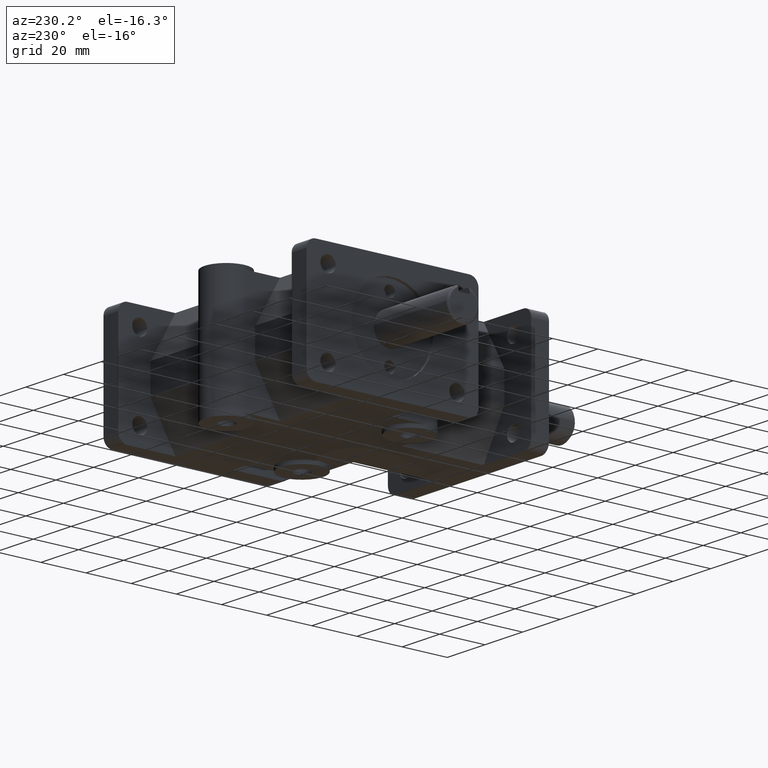
[diagram: clean part render]
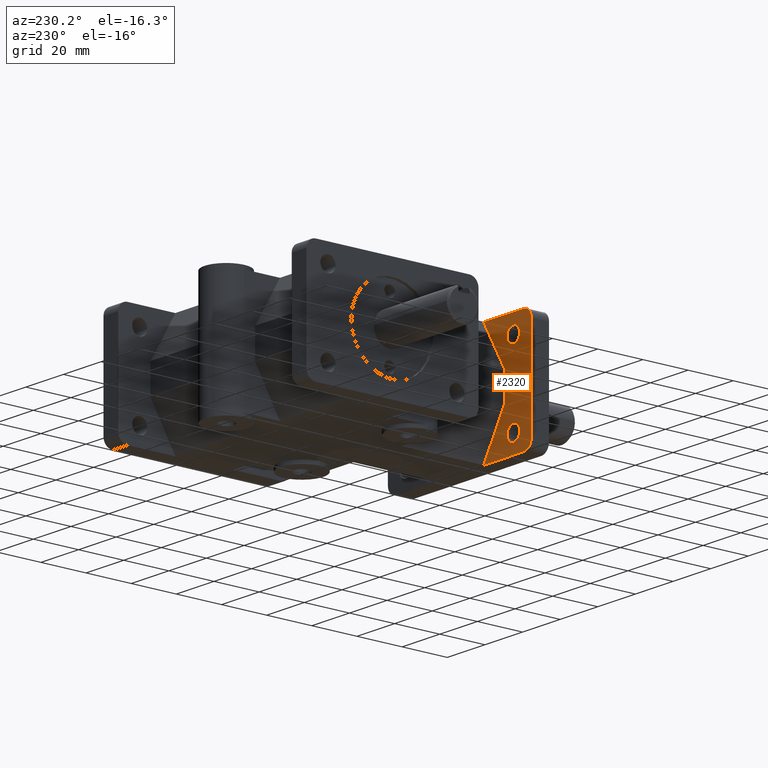
[diagram: same view with one face highlighted and labeled with its STEP entity id]
A machine part, auxiliary view. The second image highlights one B-rep face of the part: STEP entity #2320.
In plain terms, the highlighted planar face has unit normal (0, 1, 0).
Its self-contained STEP definition (entity closure, byte-faithful):
#24=FACE_BOUND('',#340,.T.);
#25=FACE_BOUND('',#341,.T.);
#93=PLANE('',#2520);
#201=FACE_OUTER_BOUND('',#339,.T.);
#339=EDGE_LOOP('',(#1764,#1765,#1766,#1767,#1768,#1769,#1770,#1771));
#340=EDGE_LOOP('',(#1772));
#341=EDGE_LOOP('',(#1773));
#518=LINE('',#3638,#740);
#519=LINE('',#3640,#741);
#520=LINE('',#3642,#742);
#521=LINE('',#3644,#743);
#522=LINE('',#3645,#744);
#523=LINE('',#3646,#745);
#740=VECTOR('',#2933,1.);
#741=VECTOR('',#2934,1.);
#742=VECTOR('',#2935,1.);
#743=VECTOR('',#2936,1.);
#744=VECTOR('',#2937,1.);
#745=VECTOR('',#2938,1.);
#930=CIRCLE('',#2486,4.064);
#932=CIRCLE('',#2489,4.064);
#953=CIRCLE('',#2521,3.3655);
#954=CIRCLE('',#2522,3.3655);
#1058=VERTEX_POINT('',#3532);
#1059=VERTEX_POINT('',#3534);
#1062=VERTEX_POINT('',#3541);
#1063=VERTEX_POINT('',#3543);
#1104=VERTEX_POINT('',#3637);
#1105=VERTEX_POINT('',#3639);
#1106=VERTEX_POINT('',#3641);
#1107=VERTEX_POINT('',#3643);
#1108=VERTEX_POINT('',#3647);
#1109=VERTEX_POINT('',#3649);
#1306=EDGE_CURVE('',#1058,#1059,#930,.T.);
#1310=EDGE_CURVE('',#1062,#1063,#932,.T.);
#1352=EDGE_CURVE('',#1058,#1104,#518,.T.);
#1353=EDGE_CURVE('',#1105,#1104,#519,.F.);
#1354=EDGE_CURVE('',#1105,#1106,#520,.T.);
#1355=EDGE_CURVE('',#1107,#1106,#521,.F.);
#1356=EDGE_CURVE('',#1107,#1063,#522,.T.);
#1357=EDGE_CURVE('',#1059,#1062,#523,.T.);
#1358=EDGE_CURVE('',#1108,#1108,#953,.T.);
#1359=EDGE_CURVE('',#1109,#1109,#954,.T.);
#1764=ORIENTED_EDGE('',*,*,#1306,.F.);
#1765=ORIENTED_EDGE('',*,*,#1352,.T.);
#1766=ORIENTED_EDGE('',*,*,#1353,.F.);
#1767=ORIENTED_EDGE('',*,*,#1354,.T.);
#1768=ORIENTED_EDGE('',*,*,#1355,.F.);
#1769=ORIENTED_EDGE('',*,*,#1356,.T.);
#1770=ORIENTED_EDGE('',*,*,#1310,.F.);
#1771=ORIENTED_EDGE('',*,*,#1357,.F.);
#1772=ORIENTED_EDGE('',*,*,#1358,.T.);
#1773=ORIENTED_EDGE('',*,*,#1359,.T.);
#2320=ADVANCED_FACE('',(#201,#24,#25),#93,.T.);
#2486=AXIS2_PLACEMENT_3D('',#3535,#2840,#2841);
#2489=AXIS2_PLACEMENT_3D('',#3544,#2848,#2849);
#2520=AXIS2_PLACEMENT_3D('',#3636,#2931,#2932);
#2521=AXIS2_PLACEMENT_3D('',#3648,#2939,#2940);
#2522=AXIS2_PLACEMENT_3D('',#3650,#2941,#2942);
#2840=DIRECTION('center_axis',(0.,-1.,0.));
#2841=DIRECTION('ref_axis',(-0.707106781186548,0.,0.707106781186548));
#2848=DIRECTION('center_axis',(0.,-1.,0.));
#2849=DIRECTION('ref_axis',(-0.707106781186548,0.,-0.707106781186548));
#2931=DIRECTION('center_axis',(0.,1.,0.));
#2932=DIRECTION('ref_axis',(0.,0.,-1.));
#2933=DIRECTION('',(1.,0.,0.));
#2934=DIRECTION('',(-0.500000258168844,0.,-0.866025254730536));
#2935=DIRECTION('',(0.,0.,-1.));
#2936=DIRECTION('',(0.500000258168844,0.,-0.866025254730536));
#2937=DIRECTION('',(-1.,0.,0.));
#2938=DIRECTION('',(0.,0.,-1.));
#2939=DIRECTION('center_axis',(0.,-1.,0.));
#2940=DIRECTION('ref_axis',(1.,0.,0.));
#2941=DIRECTION('center_axis',(0.,-1.,0.));
#2942=DIRECTION('ref_axis',(1.,0.,0.));
#3532=CARTESIAN_POINT('',(-34.036,7.874,25.4));
#3534=CARTESIAN_POINT('',(-38.1,7.874,21.336));
#3535=CARTESIAN_POINT('Origin',(-34.036,7.874,21.336));
#3541=CARTESIAN_POINT('',(-38.1,7.874,-21.336));
#3543=CARTESIAN_POINT('',(-34.036,7.874,-25.4));
#3544=CARTESIAN_POINT('Origin',(-34.036,7.874,-21.336));
#3636=CARTESIAN_POINT('Origin',(-23.8125,7.874,0.));
#3637=CARTESIAN_POINT('',(-12.8139698,7.874,25.4));
#3638=CARTESIAN_POINT('',(-11.90625,7.874,25.4));
#3639=CARTESIAN_POINT('',(-23.8125,7.874,6.35));
#3640=CARTESIAN_POINT('',(-22.4376832517536,7.874,8.73125081968629));
#3641=CARTESIAN_POINT('',(-23.8125,7.874,-6.35));
#3642=CARTESIAN_POINT('',(-23.8125,7.874,0.));
#3643=CARTESIAN_POINT('',(-12.8139698,7.874,-25.4));
#3644=CARTESIAN_POINT('',(-22.4376832517536,7.874,-8.73125081968629));
#3645=CARTESIAN_POINT('',(-38.1,7.874,-25.4));
#3646=CARTESIAN_POINT('',(-38.1,7.874,0.));
#3647=CARTESIAN_POINT('',(-31.9405,7.874,17.4625));
#3648=CARTESIAN_POINT('Origin',(-28.575,7.874,17.4625));
#3649=CARTESIAN_POINT('',(-31.9405,7.874,-17.4625));
#3650=CARTESIAN_POINT('Origin',(-28.575,7.874,-17.4625));